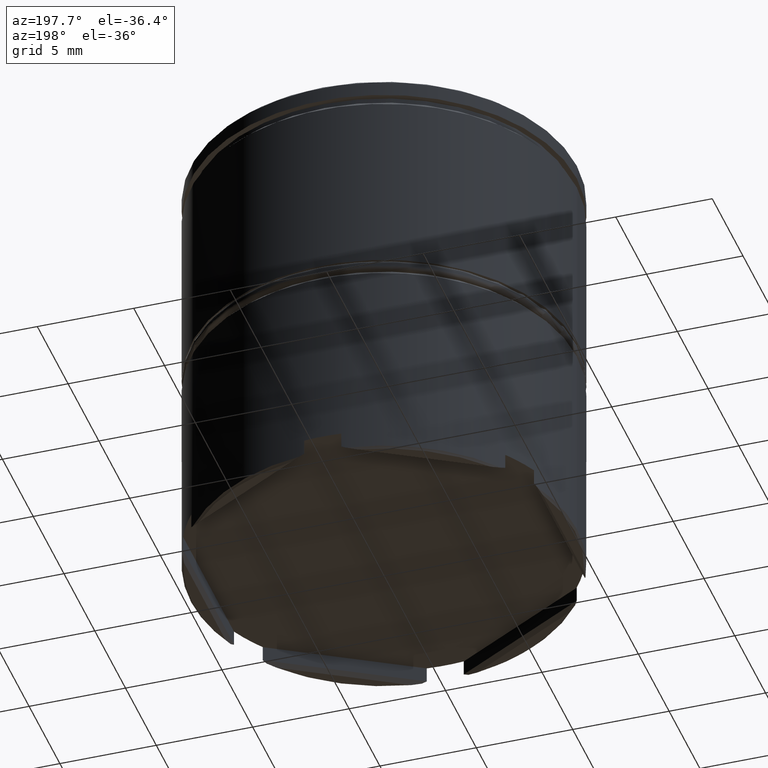
[diagram: clean part render]
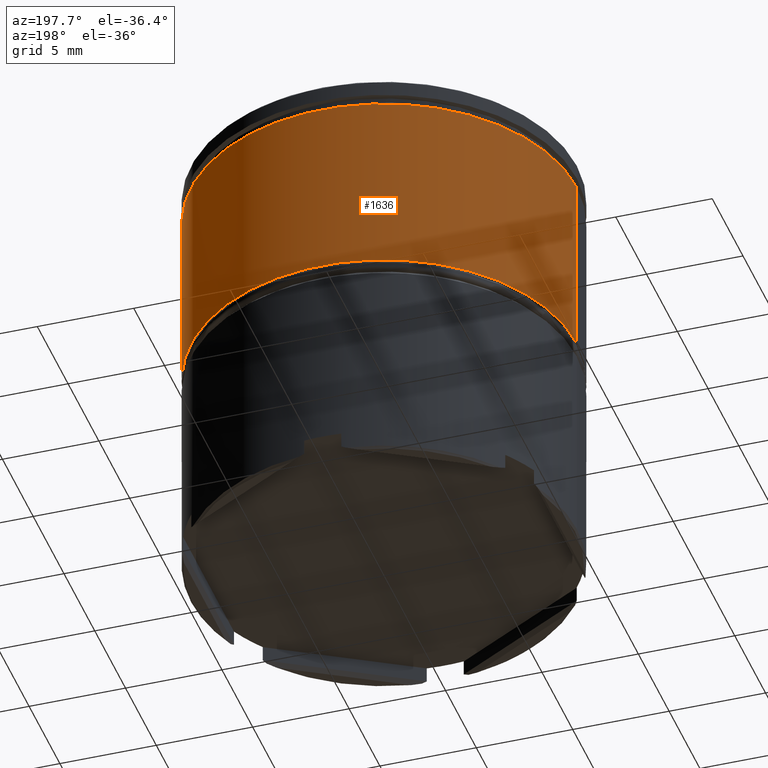
[diagram: same view with one face highlighted and labeled with its STEP entity id]
A machine part, auxiliary view. The second image highlights one B-rep face of the part: STEP entity #1636.
In plain terms, the highlighted cylindrical surface (partial cylindrical patch) has radius 10 mm, axis along (-0, -0, 1).
Its self-contained STEP definition (entity closure, byte-faithful):
#18 = LINE ( 'NONE', #930, #1349 ) ;
#25 = VERTEX_POINT ( 'NONE', #159 ) ;
#157 = VERTEX_POINT ( 'NONE', #1112 ) ;
#159 = CARTESIAN_POINT ( 'NONE',  ( 10.00000000000000000, 0.000000000000000000, -11.00000000000000000 ) ) ;
#190 = DIRECTION ( 'NONE',  ( 1.000000000000000000, 0.000000000000000000, 0.000000000000000000 ) ) ;
#215 = AXIS2_PLACEMENT_3D ( 'NONE', #1125, #235, #1224 ) ;
#235 = DIRECTION ( 'NONE',  ( -0.000000000000000000, -0.000000000000000000, 1.000000000000000000 ) ) ;
#236 = DIRECTION ( 'NONE',  ( 0.000000000000000000, 0.000000000000000000, -1.000000000000000000 ) ) ;
#244 = CYLINDRICAL_SURFACE ( 'NONE', #215, 10.00000000000000000 ) ;
#247 = EDGE_CURVE ( 'NONE', #25, #1049, #742, .T. ) ;
#267 = VECTOR ( 'NONE', #1357, 1000.000000000000000 ) ;
#350 = ORIENTED_EDGE ( 'NONE', *, *, #1263, .T. ) ;
#367 = AXIS2_PLACEMENT_3D ( 'NONE', #1616, #236, #741 ) ;
#525 = AXIS2_PLACEMENT_3D ( 'NONE', #1230, #1074, #190 ) ;
#532 = DIRECTION ( 'NONE',  ( -0.000000000000000000, -0.000000000000000000, 1.000000000000000000 ) ) ;
#612 = CARTESIAN_POINT ( 'NONE',  ( -10.00000000000000000, 1.224646799147353256E-15, -1.425000000000008704 ) ) ;
#720 = EDGE_CURVE ( 'NONE', #898, #157, #848, .T. ) ;
#724 = FACE_OUTER_BOUND ( 'NONE', #1057, .T. ) ;
#741 = DIRECTION ( 'NONE',  ( 1.000000000000000000, 0.000000000000000000, 0.000000000000000000 ) ) ;
#742 = CIRCLE ( 'NONE', #525, 10.00000000000000000 ) ;
#753 = LINE ( 'NONE', #1255, #267 ) ;
#773 = EDGE_CURVE ( 'NONE', #25, #157, #753, .T. ) ;
#848 = CIRCLE ( 'NONE', #367, 10.00000000000000000 ) ;
#898 = VERTEX_POINT ( 'NONE', #612 ) ;
#930 = CARTESIAN_POINT ( 'NONE',  ( -10.00000000000000000, 1.224646799147353256E-15, 0.000000000000000000 ) ) ;
#1049 = VERTEX_POINT ( 'NONE', #1440 ) ;
#1057 = EDGE_LOOP ( 'NONE', ( #1465, #350, #1159, #1256 ) ) ;
#1074 = DIRECTION ( 'NONE',  ( -0.000000000000000000, -0.000000000000000000, 1.000000000000000000 ) ) ;
#1112 = CARTESIAN_POINT ( 'NONE',  ( 10.00000000000000000, 0.000000000000000000, -1.425000000000008704 ) ) ;
#1125 = CARTESIAN_POINT ( 'NONE',  ( 0.000000000000000000, 0.000000000000000000, 0.000000000000000000 ) ) ;
#1159 = ORIENTED_EDGE ( 'NONE', *, *, #720, .T. ) ;
#1224 = DIRECTION ( 'NONE',  ( 1.000000000000000000, 0.000000000000000000, 0.000000000000000000 ) ) ;
#1230 = CARTESIAN_POINT ( 'NONE',  ( 0.000000000000000000, 0.000000000000000000, -11.00000000000000000 ) ) ;
#1255 = CARTESIAN_POINT ( 'NONE',  ( 10.00000000000000000, 0.000000000000000000, 0.000000000000000000 ) ) ;
#1256 = ORIENTED_EDGE ( 'NONE', *, *, #773, .F. ) ;
#1263 = EDGE_CURVE ( 'NONE', #1049, #898, #18, .T. ) ;
#1349 = VECTOR ( 'NONE', #532, 1000.000000000000000 ) ;
#1357 = DIRECTION ( 'NONE',  ( -0.000000000000000000, -0.000000000000000000, 1.000000000000000000 ) ) ;
#1440 = CARTESIAN_POINT ( 'NONE',  ( -10.00000000000000000, 1.224646799147353256E-15, -11.00000000000000000 ) ) ;
#1465 = ORIENTED_EDGE ( 'NONE', *, *, #247, .T. ) ;
#1616 = CARTESIAN_POINT ( 'NONE',  ( 0.000000000000000000, 0.000000000000000000, -1.425000000000008704 ) ) ;
#1636 = ADVANCED_FACE ( 'NONE', ( #724 ), #244, .T. ) ;